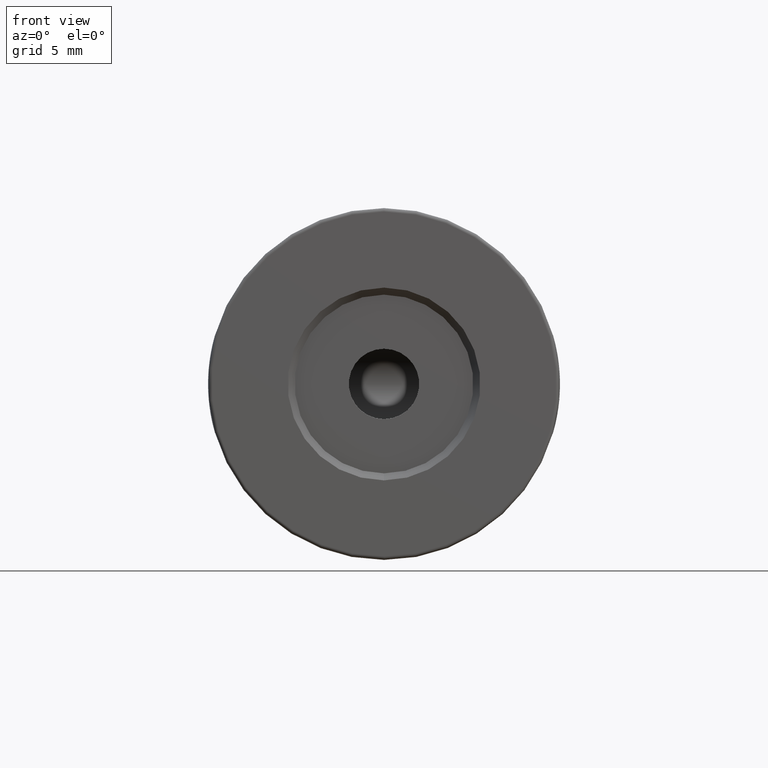
[diagram: clean part render]
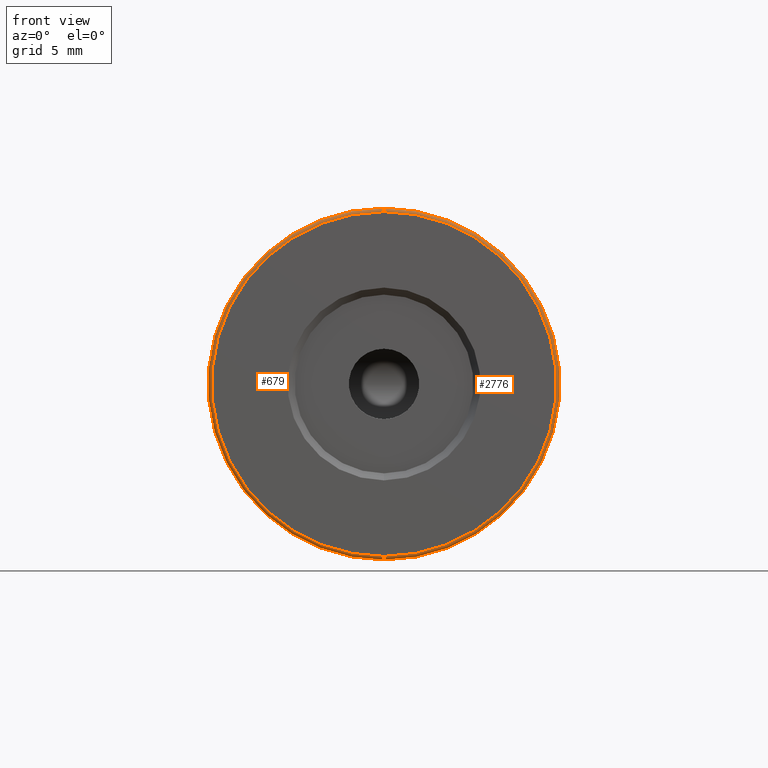
[diagram: same view with one multi-face feature highlighted, each face labeled with its STEP entity id]
A machine part, front view. The highlighted faces form ONE feature: a constant-radius fillet chain: 2 tangent blend faces with common blend radius 0.25 mm. The faces share edges in the B-rep.
Their STEP definitions:
[1] entity #2776 (Torus):
#78 = EDGE_CURVE ( 'NONE', #2919, #618, #665, .T. ) ;
#90 = DIRECTION ( 'NONE',  ( -1.000000000000000000, 0.0000000000000000000, 0.0000000000000000000 ) ) ;
#167 = CARTESIAN_POINT ( 'NONE',  ( -22.50520183104453409, -17.40174781523061043, 37.50000000000000711 ) ) ;
#237 = FACE_OUTER_BOUND ( 'NONE', #290, .T. ) ;
#290 = EDGE_LOOP ( 'NONE', ( #1673, #1863, #2822, #1980 ) ) ;
#375 = VERTEX_POINT ( 'NONE', #2311 ) ;
#400 = CARTESIAN_POINT ( 'NONE',  ( -22.50520183104453409, -17.65174781523061043, 62.25000000000000000 ) ) ;
#450 = CIRCLE ( 'NONE', #2525, 12.24999999999999645 ) ;
#618 = VERTEX_POINT ( 'NONE', #167 ) ;
#643 = DIRECTION ( 'NONE',  ( 0.0000000000000000000, 0.0000000000000000000, -1.000000000000000000 ) ) ;
#665 = CIRCLE ( 'NONE', #2279, 12.49999999999999645 ) ;
#719 = AXIS2_PLACEMENT_3D ( 'NONE', #1387, #2228, #643 ) ;
#735 = CIRCLE ( 'NONE', #1792, 0.2500000000000002220 ) ;
#784 = CARTESIAN_POINT ( 'NONE',  ( -22.50520183104453409, -17.40174781523061043, 62.50000000000000000 ) ) ;
#798 = VERTEX_POINT ( 'NONE', #400 ) ;
#800 = CARTESIAN_POINT ( 'NONE',  ( -22.50520183104453409, -17.40174781523061043, 50.00000000000000000 ) ) ;
#850 = DIRECTION ( 'NONE',  ( -0.0000000000000000000, -1.000000000000000000, -0.0000000000000000000 ) ) ;
#1278 = TOROIDAL_SURFACE ( 'NONE', #2521, 12.25000000000000000, 0.2500000000000000000 ) ;
#1387 = CARTESIAN_POINT ( 'NONE',  ( -22.50520183104453409, -17.40174781523061043, 37.75000000000000711 ) ) ;
#1399 = DIRECTION ( 'NONE',  ( 0.0000000000000000000, 0.0000000000000000000, 1.000000000000000000 ) ) ;
#1439 = CARTESIAN_POINT ( 'NONE',  ( -22.50520183104453409, -17.40174781523061043, 50.00000000000000000 ) ) ;
#1443 = EDGE_CURVE ( 'NONE', #798, #2919, #735, .T. ) ;
#1595 = DIRECTION ( 'NONE',  ( 0.0000000000000000000, 0.0000000000000000000, 1.000000000000000000 ) ) ;
#1610 = CARTESIAN_POINT ( 'NONE',  ( -22.50520183104453409, -17.65174781523061043, 50.00000000000000000 ) ) ;
#1673 = ORIENTED_EDGE ( 'NONE', *, *, #2455, .F. ) ;
#1675 = EDGE_CURVE ( 'NONE', #375, #618, #2227, .T. ) ;
#1792 = AXIS2_PLACEMENT_3D ( 'NONE', #2752, #90, #1399 ) ;
#1863 = ORIENTED_EDGE ( 'NONE', *, *, #1675, .T. ) ;
#1865 = DIRECTION ( 'NONE',  ( 0.0000000000000000000, 0.0000000000000000000, 1.000000000000000000 ) ) ;
#1980 = ORIENTED_EDGE ( 'NONE', *, *, #1443, .F. ) ;
#2141 = DIRECTION ( 'NONE',  ( 0.0000000000000000000, 1.000000000000000000, 0.0000000000000000000 ) ) ;
#2227 = CIRCLE ( 'NONE', #719, 0.2500000000000002220 ) ;
#2228 = DIRECTION ( 'NONE',  ( 1.000000000000000000, -0.0000000000000000000, 1.224646799147353207E-16 ) ) ;
#2279 = AXIS2_PLACEMENT_3D ( 'NONE', #1439, #2547, #2513 ) ;
#2311 = CARTESIAN_POINT ( 'NONE',  ( -22.50520183104453409, -17.65174781523061043, 37.75000000000000711 ) ) ;
#2455 = EDGE_CURVE ( 'NONE', #375, #798, #450, .T. ) ;
#2513 = DIRECTION ( 'NONE',  ( 0.0000000000000000000, 0.0000000000000000000, 1.000000000000000000 ) ) ;
#2521 = AXIS2_PLACEMENT_3D ( 'NONE', #800, #2141, #1865 ) ;
#2525 = AXIS2_PLACEMENT_3D ( 'NONE', #1610, #850, #1595 ) ;
#2547 = DIRECTION ( 'NONE',  ( 0.0000000000000000000, 1.000000000000000000, 0.0000000000000000000 ) ) ;
#2752 = CARTESIAN_POINT ( 'NONE',  ( -22.50520183104453409, -17.40174781523061043, 62.25000000000000000 ) ) ;
#2776 = ADVANCED_FACE ( 'NONE', ( #237 ), #1278, .T. ) ;
#2822 = ORIENTED_EDGE ( 'NONE', *, *, #78, .F. ) ;
#2919 = VERTEX_POINT ( 'NONE', #784 ) ;
[2] entity #679 (Torus):
#90 = DIRECTION ( 'NONE',  ( -1.000000000000000000, 0.0000000000000000000, 0.0000000000000000000 ) ) ;
#167 = CARTESIAN_POINT ( 'NONE',  ( -22.50520183104453409, -17.40174781523061043, 37.50000000000000711 ) ) ;
#375 = VERTEX_POINT ( 'NONE', #2311 ) ;
#400 = CARTESIAN_POINT ( 'NONE',  ( -22.50520183104453409, -17.65174781523061043, 62.25000000000000000 ) ) ;
#606 = AXIS2_PLACEMENT_3D ( 'NONE', #1819, #3057, #2016 ) ;
#618 = VERTEX_POINT ( 'NONE', #167 ) ;
#643 = DIRECTION ( 'NONE',  ( 0.0000000000000000000, 0.0000000000000000000, -1.000000000000000000 ) ) ;
#679 = ADVANCED_FACE ( 'NONE', ( #2890 ), #770, .T. ) ;
#719 = AXIS2_PLACEMENT_3D ( 'NONE', #1387, #2228, #643 ) ;
#735 = CIRCLE ( 'NONE', #1792, 0.2500000000000002220 ) ;
#770 = TOROIDAL_SURFACE ( 'NONE', #606, 12.25000000000000000, 0.2500000000000000000 ) ;
#784 = CARTESIAN_POINT ( 'NONE',  ( -22.50520183104453409, -17.40174781523061043, 62.50000000000000000 ) ) ;
#798 = VERTEX_POINT ( 'NONE', #400 ) ;
#913 = ORIENTED_EDGE ( 'NONE', *, *, #1443, .T. ) ;
#964 = EDGE_LOOP ( 'NONE', ( #1350, #3157, #913, #1748 ) ) ;
#1178 = CIRCLE ( 'NONE', #3130, 12.49999999999999645 ) ;
#1200 = CARTESIAN_POINT ( 'NONE',  ( -22.50520183104453409, -17.65174781523061043, 50.00000000000000000 ) ) ;
#1350 = ORIENTED_EDGE ( 'NONE', *, *, #1675, .F. ) ;
#1387 = CARTESIAN_POINT ( 'NONE',  ( -22.50520183104453409, -17.40174781523061043, 37.75000000000000711 ) ) ;
#1399 = DIRECTION ( 'NONE',  ( 0.0000000000000000000, 0.0000000000000000000, 1.000000000000000000 ) ) ;
#1443 = EDGE_CURVE ( 'NONE', #798, #2919, #735, .T. ) ;
#1451 = CIRCLE ( 'NONE', #3239, 12.24999999999999645 ) ;
#1647 = DIRECTION ( 'NONE',  ( 0.0000000000000000000, 0.0000000000000000000, 1.000000000000000000 ) ) ;
#1675 = EDGE_CURVE ( 'NONE', #375, #618, #2227, .T. ) ;
#1748 = ORIENTED_EDGE ( 'NONE', *, *, #2667, .F. ) ;
#1792 = AXIS2_PLACEMENT_3D ( 'NONE', #2752, #90, #1399 ) ;
#1819 = CARTESIAN_POINT ( 'NONE',  ( -22.50520183104453409, -17.40174781523061043, 50.00000000000000000 ) ) ;
#1896 = CARTESIAN_POINT ( 'NONE',  ( -22.50520183104453409, -17.40174781523061043, 50.00000000000000000 ) ) ;
#2016 = DIRECTION ( 'NONE',  ( 0.0000000000000000000, 0.0000000000000000000, 1.000000000000000000 ) ) ;
#2227 = CIRCLE ( 'NONE', #719, 0.2500000000000002220 ) ;
#2228 = DIRECTION ( 'NONE',  ( 1.000000000000000000, -0.0000000000000000000, 1.224646799147353207E-16 ) ) ;
#2267 = DIRECTION ( 'NONE',  ( -0.0000000000000000000, -1.000000000000000000, -0.0000000000000000000 ) ) ;
#2311 = CARTESIAN_POINT ( 'NONE',  ( -22.50520183104453409, -17.65174781523061043, 37.75000000000000711 ) ) ;
#2667 = EDGE_CURVE ( 'NONE', #618, #2919, #1178, .T. ) ;
#2752 = CARTESIAN_POINT ( 'NONE',  ( -22.50520183104453409, -17.40174781523061043, 62.25000000000000000 ) ) ;
#2890 = FACE_OUTER_BOUND ( 'NONE', #964, .T. ) ;
#2919 = VERTEX_POINT ( 'NONE', #784 ) ;
#3057 = DIRECTION ( 'NONE',  ( 0.0000000000000000000, 1.000000000000000000, 0.0000000000000000000 ) ) ;
#3130 = AXIS2_PLACEMENT_3D ( 'NONE', #1896, #3212, #1647 ) ;
#3157 = ORIENTED_EDGE ( 'NONE', *, *, #3199, .F. ) ;
#3199 = EDGE_CURVE ( 'NONE', #798, #375, #1451, .T. ) ;
#3212 = DIRECTION ( 'NONE',  ( 0.0000000000000000000, 1.000000000000000000, 0.0000000000000000000 ) ) ;
#3239 = AXIS2_PLACEMENT_3D ( 'NONE', #1200, #2267, #3333 ) ;
#3333 = DIRECTION ( 'NONE',  ( 0.0000000000000000000, 0.0000000000000000000, 1.000000000000000000 ) ) ;